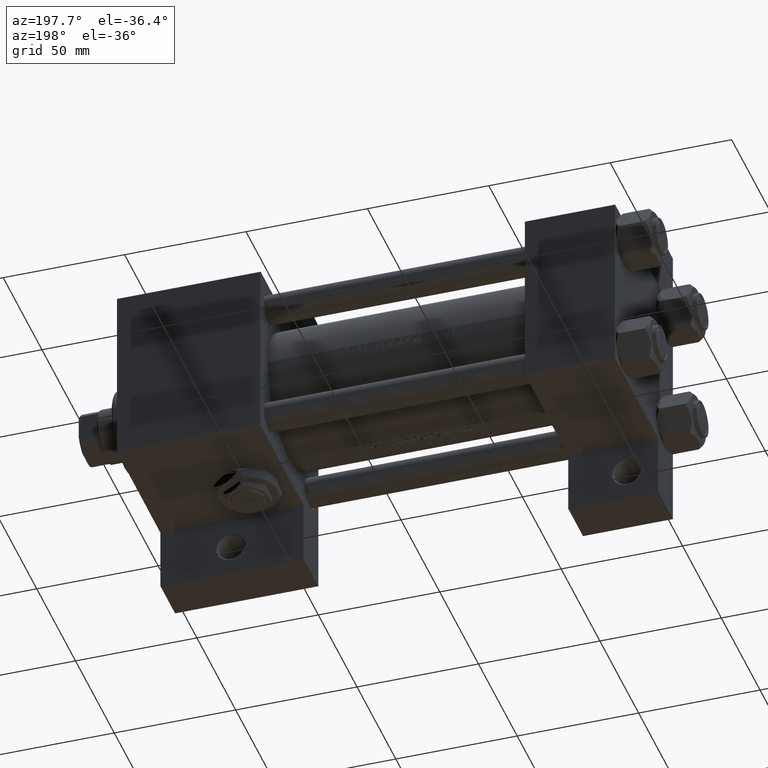
[diagram: clean part render]
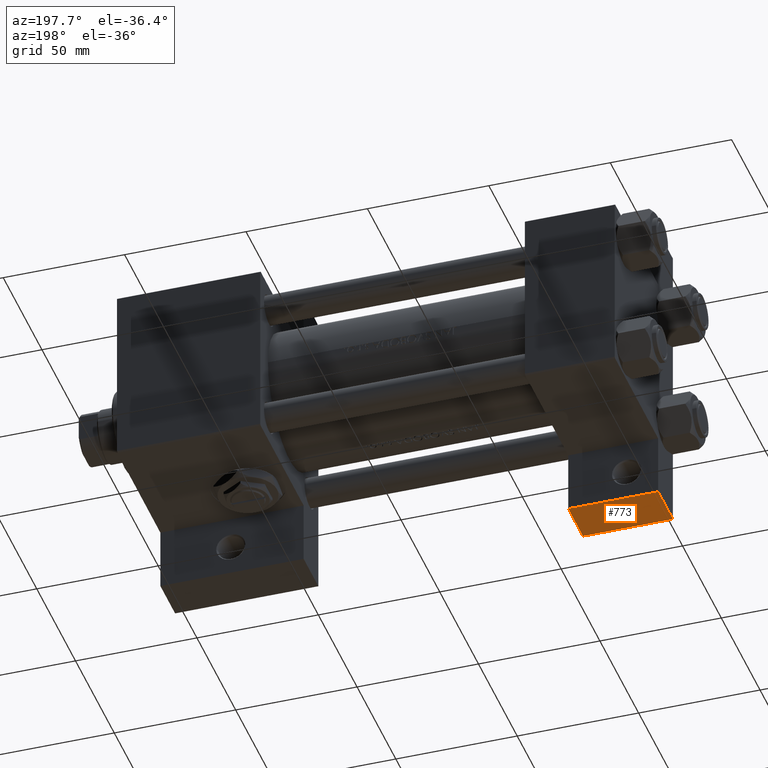
[diagram: same view with one face highlighted and labeled with its STEP entity id]
A machine part, auxiliary view. The second image highlights one B-rep face of the part: STEP entity #773.
In plain terms, the highlighted planar face has unit normal (0, -0, -1).
Its self-contained STEP definition (entity closure, byte-faithful):
#773 = ADVANCED_FACE ( 'NONE', ( #4700 ), #30879, .T. ) ;
#4700 = FACE_OUTER_BOUND ( 'NONE', #26657, .T. ) ;
#5866 = CARTESIAN_POINT ( 'NONE',  ( 1.595073532467135441E-14, 63.50000000000001421, 26.72167621838005047 ) ) ;
#6116 = DIRECTION ( 'NONE',  ( 0.000000000000000000, -1.734723475976806848E-16, -1.000000000000000000 ) ) ;
#7436 = VERTEX_POINT ( 'NONE', #48545 ) ;
#7589 = EDGE_CURVE ( 'NONE', #26022, #10805, #34582, .T. ) ;
#7956 = DIRECTION ( 'NONE',  ( 0.000000000000000000, 1.000000000000000000, -1.734723475976806848E-16 ) ) ;
#9598 = EDGE_CURVE ( 'NONE', #41765, #10805, #46718, .T. ) ;
#10805 = VERTEX_POINT ( 'NONE', #30990 ) ;
#10934 = CARTESIAN_POINT ( 'NONE',  ( 1.595073532467135441E-14, 63.50000000000000000, -18.50000000000000355 ) ) ;
#11951 = DIRECTION ( 'NONE',  ( 0.000000000000000000, 1.734723475976806848E-16, 1.000000000000000000 ) ) ;
#12560 = ORIENTED_EDGE ( 'NONE', *, *, #7589, .F. ) ;
#13729 = VECTOR ( 'NONE', #6116, 1000.000000000000000 ) ;
#14236 = AXIS2_PLACEMENT_3D ( 'NONE', #15947, #7956, #11951 ) ;
#15947 = CARTESIAN_POINT ( 'NONE',  ( 1.595073532467135441E-14, 63.50000000000001421, 26.72167621838005047 ) ) ;
#18384 = VECTOR ( 'NONE', #18410, 1000.000000000000000 ) ;
#18410 = DIRECTION ( 'NONE',  ( -1.000000000000000000, 0.000000000000000000, 0.000000000000000000 ) ) ;
#20226 = EDGE_CURVE ( 'NONE', #41765, #7436, #21913, .T. ) ;
#21518 = ORIENTED_EDGE ( 'NONE', *, *, #37748, .F. ) ;
#21913 = LINE ( 'NONE', #10934, #18384 ) ;
#23339 = CARTESIAN_POINT ( 'NONE',  ( 37.00000000000001421, 63.50000000000001421, 26.72167621838005047 ) ) ;
#25051 = CARTESIAN_POINT ( 'NONE',  ( 1.595073532467135441E-14, 63.50000000000000000, -37.50000000000002132 ) ) ;
#25721 = CARTESIAN_POINT ( 'NONE',  ( 37.00000000000001421, 63.50000000000000000, -18.50000000000000355 ) ) ;
#26022 = VERTEX_POINT ( 'NONE', #25051 ) ;
#26657 = EDGE_LOOP ( 'NONE', ( #46088, #48688, #12560, #21518 ) ) ;
#26875 = DIRECTION ( 'NONE',  ( 1.000000000000000000, 0.000000000000000000, 0.000000000000000000 ) ) ;
#30879 = PLANE ( 'NONE',  #14236 ) ;
#30990 = CARTESIAN_POINT ( 'NONE',  ( 37.00000000000001421, 63.50000000000000000, -37.50000000000002132 ) ) ;
#33212 = VECTOR ( 'NONE', #26875, 1000.000000000000000 ) ;
#34582 = LINE ( 'NONE', #45791, #33212 ) ;
#35505 = DIRECTION ( 'NONE',  ( 0.000000000000000000, -1.734723475976806848E-16, -1.000000000000000000 ) ) ;
#37748 = EDGE_CURVE ( 'NONE', #7436, #26022, #39751, .T. ) ;
#39751 = LINE ( 'NONE', #5866, #13729 ) ;
#41765 = VERTEX_POINT ( 'NONE', #25721 ) ;
#41984 = VECTOR ( 'NONE', #35505, 1000.000000000000000 ) ;
#45791 = CARTESIAN_POINT ( 'NONE',  ( 1.595073532467135441E-14, 63.50000000000000000, -37.50000000000002132 ) ) ;
#46088 = ORIENTED_EDGE ( 'NONE', *, *, #20226, .F. ) ;
#46718 = LINE ( 'NONE', #23339, #41984 ) ;
#48545 = CARTESIAN_POINT ( 'NONE',  ( 1.595073532467135441E-14, 63.50000000000000000, -18.50000000000000355 ) ) ;
#48688 = ORIENTED_EDGE ( 'NONE', *, *, #9598, .T. ) ;